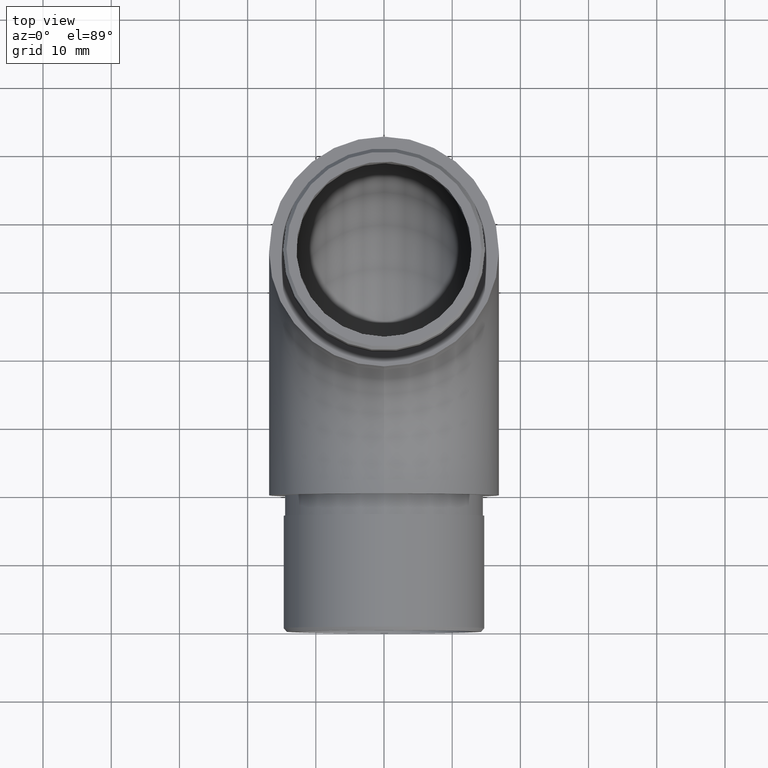
[diagram: clean part render]
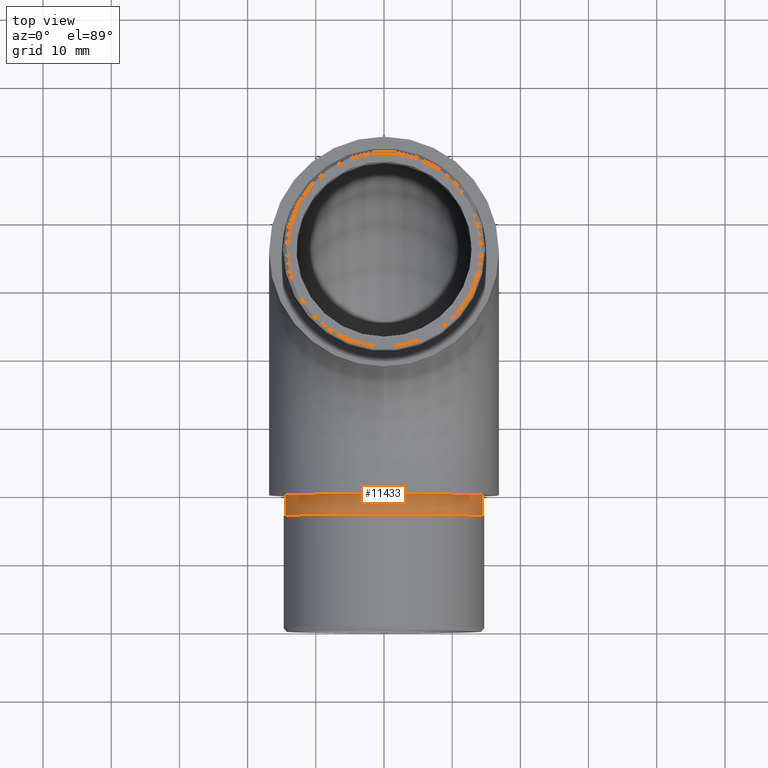
[diagram: same view with one face highlighted and labeled with its STEP entity id]
A machine part, top view. The second image highlights one B-rep face of the part: STEP entity #11433.
In plain terms, the highlighted cylindrical surface (bore or boss wall) has radius 14.6 mm, axis along (-0, 1, -0).
Its self-contained STEP definition (entity closure, byte-faithful):
#857 = CIRCLE ( 'NONE', #9103, 14.60000000000000100 ) ;
#1340 = EDGE_LOOP ( 'NONE', ( #10905 ) ) ;
#1692 = AXIS2_PLACEMENT_3D ( 'NONE', #4856, #3987, #11775 ) ;
#1919 = DIRECTION ( 'NONE',  ( -0.0000000000000000000, -1.000000000000000000, -0.0000000000000000000 ) ) ;
#1950 = VERTEX_POINT ( 'NONE', #4390 ) ;
#3198 = CARTESIAN_POINT ( 'NONE',  ( 0.0000000000000000000, -3.000000000000000000, 2.250000000000001800 ) ) ;
#3480 = CARTESIAN_POINT ( 'NONE',  ( 0.0000000000000000000, -3.000000000000000000, 16.85000000000000500 ) ) ;
#3987 = DIRECTION ( 'NONE',  ( 0.0000000000000000000, -1.000000000000000000, 0.0000000000000000000 ) ) ;
#4130 = FACE_OUTER_BOUND ( 'NONE', #7091, .T. ) ;
#4390 = CARTESIAN_POINT ( 'NONE',  ( 0.0000000000000000000, 0.0000000000000000000, 31.45000000000000600 ) ) ;
#4856 = CARTESIAN_POINT ( 'NONE',  ( 0.0000000000000000000, -3.000000000000000000, 16.85000000000000500 ) ) ;
#5438 = EDGE_CURVE ( 'NONE', #6849, #6849, #12309, .T. ) ;
#5657 = DIRECTION ( 'NONE',  ( 0.0000000000000000000, 0.0000000000000000000, 1.000000000000000000 ) ) ;
#5912 = EDGE_CURVE ( 'NONE', #1950, #1950, #857, .T. ) ;
#5993 = ORIENTED_EDGE ( 'NONE', *, *, #5438, .F. ) ;
#6210 = AXIS2_PLACEMENT_3D ( 'NONE', #3480, #12262, #5657 ) ;
#6849 = VERTEX_POINT ( 'NONE', #3198 ) ;
#6913 = CARTESIAN_POINT ( 'NONE',  ( 0.0000000000000000000, 0.0000000000000000000, 16.85000000000000500 ) ) ;
#7091 = EDGE_LOOP ( 'NONE', ( #5993 ) ) ;
#7764 = CYLINDRICAL_SURFACE ( 'NONE', #6210, 14.60000000000000100 ) ;
#7874 = DIRECTION ( 'NONE',  ( 0.0000000000000000000, 0.0000000000000000000, 1.000000000000000000 ) ) ;
#9103 = AXIS2_PLACEMENT_3D ( 'NONE', #6913, #1919, #7874 ) ;
#10393 = FACE_OUTER_BOUND ( 'NONE', #1340, .T. ) ;
#10905 = ORIENTED_EDGE ( 'NONE', *, *, #5912, .T. ) ;
#11433 = ADVANCED_FACE ( 'NONE', ( #4130, #10393 ), #7764, .T. ) ;
#11775 = DIRECTION ( 'NONE',  ( 0.0000000000000000000, 0.0000000000000000000, -1.000000000000000000 ) ) ;
#12262 = DIRECTION ( 'NONE',  ( -0.0000000000000000000, 1.000000000000000000, -0.0000000000000000000 ) ) ;
#12309 = CIRCLE ( 'NONE', #1692, 14.60000000000000100 ) ;